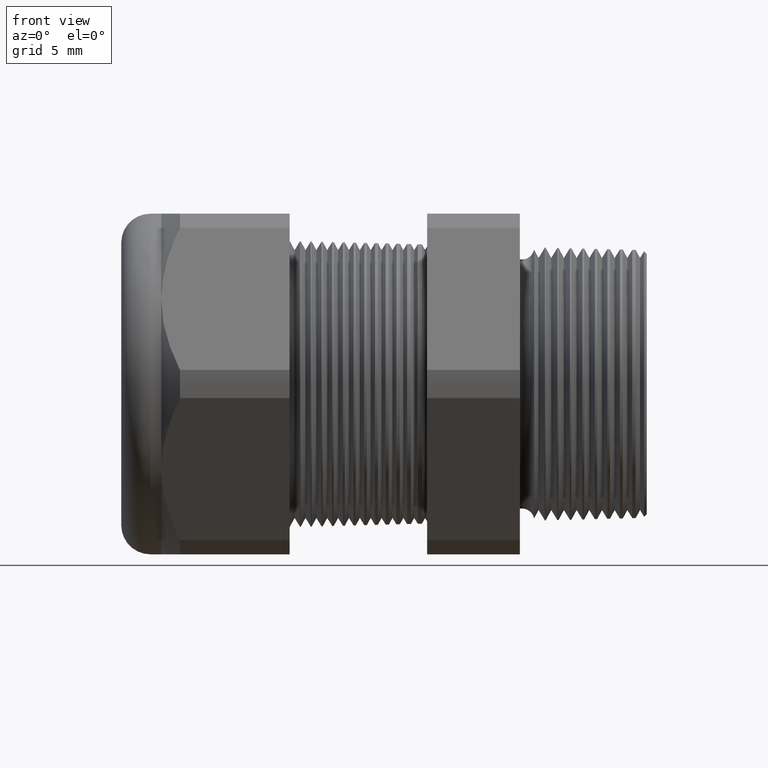
[diagram: clean part render]
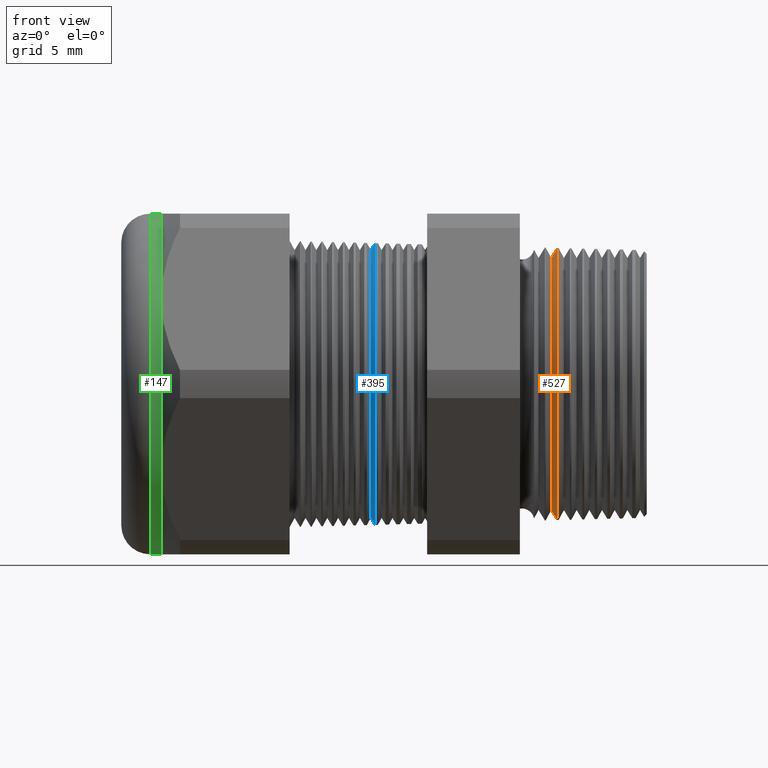
[diagram: same view with three faces highlighted in distinct colors, each labeled with its STEP entity id]
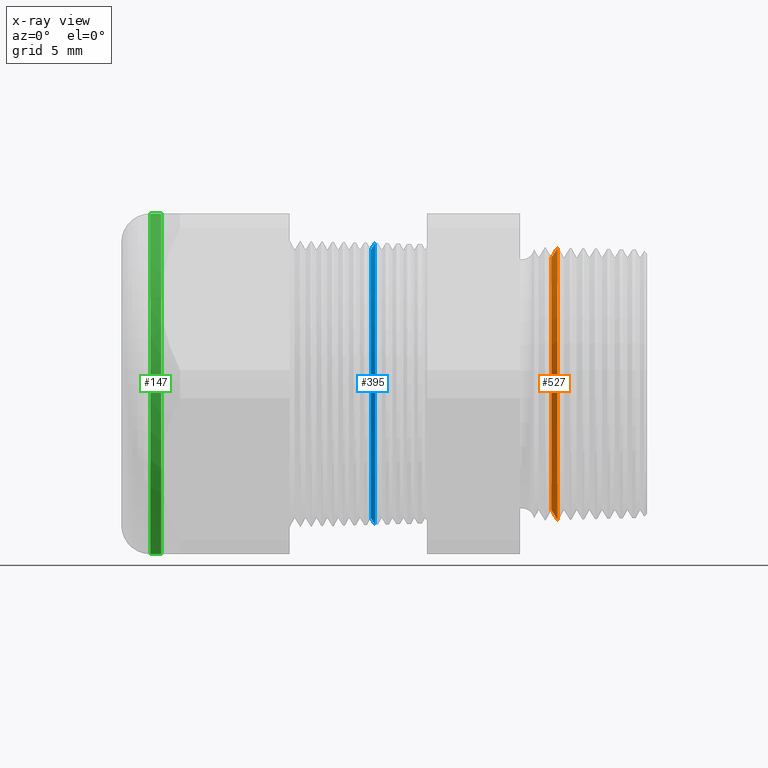
[diagram: x-ray of the same camera — body ghosted, the three highlighted faces saturated]
A machine part, front view with three faces highlighted in distinct colors.
The next image is the same camera in x-ray (body ghosted, the three faces saturated) — at least one of them is partly hidden behind the body in this view.
Their STEP definitions:

[orange] entity #527 — the highlighted conical surface has half-angle 58.5 deg.
#524 = EDGE_CURVE ( 'NONE', #1078, #1077, #2582, .T. ) ;
#527 = ADVANCED_FACE ( 'NONE', ( #2574 ), #2573, .T. ) ;
#528 = EDGE_LOOP ( 'NONE', ( #529, #530, #531, #532 ) ) ;
#529 = ORIENTED_EDGE ( 'NONE', *, *, #1157, .F. ) ;
#530 = ORIENTED_EDGE ( 'NONE', *, *, #524, .T. ) ;
#531 = ORIENTED_EDGE ( 'NONE', *, *, #1164, .T. ) ;
#532 = ORIENTED_EDGE ( 'NONE', *, *, #1655, .T. ) ;
#1077 = VERTEX_POINT ( 'NONE', #3545 ) ;
#1078 = VERTEX_POINT ( 'NONE', #3544 ) ;
#1157 = EDGE_CURVE ( 'NONE', #1078, #1158, #3708, .T. ) ;
#1158 = VERTEX_POINT ( 'NONE', #3704 ) ;
#1161 = VERTEX_POINT ( 'NONE', #3761 ) ;
#1164 = EDGE_CURVE ( 'NONE', #1077, #1161, #3760, .T. ) ;
#1655 = EDGE_CURVE ( 'NONE', #1161, #1158, #4691, .T. ) ;
#2567 = DIRECTION ( 'NONE',  ( 0.0000000000000000000, 0.0000000000000000000, -1.000000000000000000 ) ) ;
#2568 = DIRECTION ( 'NONE',  ( 1.000000000000000000, 0.0000000000000000000, 0.0000000000000000000 ) ) ;
#2569 = CARTESIAN_POINT ( 'NONE',  ( -0.2234707356790751300, 0.0000000000000000000, 0.0000000000000000000 ) ) ;
#2570 = AXIS2_PLACEMENT_3D ( 'NONE', #2569, #2568, #2567 ) ;
#2573 = CONICAL_SURFACE ( 'NONE', #2570, 0.3479174816500060800, 1.021017612416698700 ) ;
#2574 = FACE_OUTER_BOUND ( 'NONE', #528, .T. ) ;
#2575 = DIRECTION ( 'NONE',  ( 0.0000000000000000000, 0.0000000000000000000, -1.000000000000000000 ) ) ;
#2576 = DIRECTION ( 'NONE',  ( 1.000000000000000000, 0.0000000000000000000, 0.0000000000000000000 ) ) ;
#2577 = CARTESIAN_POINT ( 'NONE',  ( -0.2234707356790751300, 0.0000000000000000000, 0.0000000000000000000 ) ) ;
#2578 = AXIS2_PLACEMENT_3D ( 'NONE', #2577, #2576, #2575 ) ;
#2582 = CIRCLE ( 'NONE', #2578, 0.3479174816500060800 ) ;
#3544 = CARTESIAN_POINT ( 'NONE',  ( -0.2234707356790751300, 0.0000000000000000000, 0.3479174816500060800 ) ) ;
#3545 = CARTESIAN_POINT ( 'NONE',  ( -0.2234707356790751300, 4.435784777943734200E-017, -0.3479174816500060800 ) ) ;
#3704 = CARTESIAN_POINT ( 'NONE',  ( -0.2064763869881502400, 0.0000000000000000000, 0.3756497382329496700 ) ) ;
#3705 = DIRECTION ( 'NONE',  ( 0.5224985647159352500, 1.044183048100722500E-016, 0.8526401643541005000 ) ) ;
#3706 = VECTOR ( 'NONE', #3705, 39.37007874015748900 ) ;
#3707 = CARTESIAN_POINT ( 'NONE',  ( -0.2234707356790751300, 4.260760302700879300E-017, 0.3479174816500060800 ) ) ;
#3708 = LINE ( 'NONE', #3707, #3706 ) ;
#3757 = DIRECTION ( 'NONE',  ( 0.5224985647159352500, 0.0000000000000000000, -0.8526401643541005000 ) ) ;
#3758 = VECTOR ( 'NONE', #3757, 39.37007874015748900 ) ;
#3759 = CARTESIAN_POINT ( 'NONE',  ( -0.2234707356790751300, 0.0000000000000000000, -0.3479174816500060800 ) ) ;
#3760 = LINE ( 'NONE', #3759, #3758 ) ;
#3761 = CARTESIAN_POINT ( 'NONE',  ( -0.2064763869881502400, 4.600382495275229500E-017, -0.3756497382329496700 ) ) ;
#4687 = DIRECTION ( 'NONE',  ( 0.0000000000000000000, 0.0000000000000000000, -1.000000000000000000 ) ) ;
#4688 = DIRECTION ( 'NONE',  ( -1.000000000000000000, 0.0000000000000000000, 0.0000000000000000000 ) ) ;
#4689 = CARTESIAN_POINT ( 'NONE',  ( -0.2064763869881502400, 0.0000000000000000000, 0.0000000000000000000 ) ) ;
#4690 = AXIS2_PLACEMENT_3D ( 'NONE', #4689, #4688, #4687 ) ;
#4691 = CIRCLE ( 'NONE', #4690, 0.3756497382329496700 ) ;

[blue] entity #395 — the highlighted conical surface has half-angle 58.5 deg.
#395 = ADVANCED_FACE ( 'NONE', ( #2361 ), #2360, .T. ) ;
#396 = EDGE_LOOP ( 'NONE', ( #397, #398, #399, #400 ) ) ;
#397 = ORIENTED_EDGE ( 'NONE', *, *, #1399, .F. ) ;
#398 = ORIENTED_EDGE ( 'NONE', *, *, #468, .T. ) ;
#399 = ORIENTED_EDGE ( 'NONE', *, *, #1320, .T. ) ;
#400 = ORIENTED_EDGE ( 'NONE', *, *, #1697, .T. ) ;
#468 = EDGE_CURVE ( 'NONE', #1397, #1396, #2464, .T. ) ;
#1318 = VERTEX_POINT ( 'NONE', #4032 ) ;
#1320 = EDGE_CURVE ( 'NONE', #1396, #1318, #4031, .T. ) ;
#1396 = VERTEX_POINT ( 'NONE', #4192 ) ;
#1397 = VERTEX_POINT ( 'NONE', #4191 ) ;
#1399 = EDGE_CURVE ( 'NONE', #1397, #4266, #4190, .T. ) ;
#1697 = EDGE_CURVE ( 'NONE', #1318, #4266, #4795, .T. ) ;
#2354 = DIRECTION ( 'NONE',  ( 0.0000000000000000000, 0.0000000000000000000, -1.000000000000000000 ) ) ;
#2355 = DIRECTION ( 'NONE',  ( 1.000000000000000000, 0.0000000000000000000, 0.0000000000000000000 ) ) ;
#2356 = CARTESIAN_POINT ( 'NONE',  ( -0.7216586839320379100, 0.0000000000000000000, 0.0000000000000000000 ) ) ;
#2357 = AXIS2_PLACEMENT_3D ( 'NONE', #2356, #2355, #2354 ) ;
#2360 = CONICAL_SURFACE ( 'NONE', #2357, 0.3696307351718083300, 1.021017612416700500 ) ;
#2361 = FACE_OUTER_BOUND ( 'NONE', #396, .T. ) ;
#2456 = DIRECTION ( 'NONE',  ( 0.0000000000000000000, 0.0000000000000000000, -1.000000000000000000 ) ) ;
#2457 = DIRECTION ( 'NONE',  ( 1.000000000000000000, 0.0000000000000000000, 0.0000000000000000000 ) ) ;
#2458 = CARTESIAN_POINT ( 'NONE',  ( -0.7216586839320379100, 0.0000000000000000000, 0.0000000000000000000 ) ) ;
#2459 = AXIS2_PLACEMENT_3D ( 'NONE', #2458, #2457, #2456 ) ;
#2464 = CIRCLE ( 'NONE', #2459, 0.3696307351718083300 ) ;
#4028 = DIRECTION ( 'NONE',  ( 0.5224985647159337000, 0.0000000000000000000, -0.8526401643541013900 ) ) ;
#4029 = VECTOR ( 'NONE', #4028, 39.37007874015748900 ) ;
#4030 = CARTESIAN_POINT ( 'NONE',  ( -0.7216586839320379100, 0.0000000000000000000, -0.3696307351718083300 ) ) ;
#4031 = LINE ( 'NONE', #4030, #4029 ) ;
#4032 = CARTESIAN_POINT ( 'NONE',  ( -0.7098920471679521800, 4.761820371593978500E-017, -0.3888321412271149000 ) ) ;
#4187 = DIRECTION ( 'NONE',  ( 0.5224985647159337000, 1.044183048100723500E-016, 0.8526401643541013900 ) ) ;
#4188 = VECTOR ( 'NONE', #4187, 39.37007874015748900 ) ;
#4189 = CARTESIAN_POINT ( 'NONE',  ( -0.7216586839320379100, 4.526670966946380000E-017, 0.3696307351718083300 ) ) ;
#4190 = LINE ( 'NONE', #4189, #4188 ) ;
#4191 = CARTESIAN_POINT ( 'NONE',  ( -0.7216586839320379100, 0.0000000000000000000, 0.3696307351718083300 ) ) ;
#4192 = CARTESIAN_POINT ( 'NONE',  ( -0.7216586839320379100, 4.647855336083581100E-017, -0.3696307351718083300 ) ) ;
#4266 = VERTEX_POINT ( 'NONE', #4923 ) ;
#4791 = DIRECTION ( 'NONE',  ( 0.0000000000000000000, 0.0000000000000000000, -1.000000000000000000 ) ) ;
#4792 = DIRECTION ( 'NONE',  ( -1.000000000000000000, 0.0000000000000000000, 0.0000000000000000000 ) ) ;
#4793 = CARTESIAN_POINT ( 'NONE',  ( -0.7098920471679521800, 0.0000000000000000000, 0.0000000000000000000 ) ) ;
#4794 = AXIS2_PLACEMENT_3D ( 'NONE', #4793, #4792, #4791 ) ;
#4795 = CIRCLE ( 'NONE', #4794, 0.3888321412271149000 ) ;
#4923 = CARTESIAN_POINT ( 'NONE',  ( -0.7098920471679521800, 0.0000000000000000000, 0.3888321412271149000 ) ) ;

[green] entity #147 — the highlighted cylindrical surface (partial cylindrical patch) has radius 11.938 mm, axis along (1, 0, 0).
#132 = ORIENTED_EDGE ( 'NONE', *, *, #133, .F. ) ;
#133 = EDGE_CURVE ( 'NONE', #1358, #5219, #2029, .T. ) ;
#147 = ADVANCED_FACE ( 'NONE', ( #1997 ), #1996, .T. ) ;
#148 = EDGE_LOOP ( 'NONE', ( #149, #150, #152, #153, #155, #132 ) ) ;
#149 = ORIENTED_EDGE ( 'NONE', *, *, #1440, .F. ) ;
#150 = ORIENTED_EDGE ( 'NONE', *, *, #151, .T. ) ;
#151 = EDGE_CURVE ( 'NONE', #1364, #1363, #2057, .T. ) ;
#152 = ORIENTED_EDGE ( 'NONE', *, *, #1424, .T. ) ;
#153 = ORIENTED_EDGE ( 'NONE', *, *, #154, .F. ) ;
#154 = EDGE_CURVE ( 'NONE', #5170, #1422, #2050, .T. ) ;
#155 = ORIENTED_EDGE ( 'NONE', *, *, #156, .F. ) ;
#156 = EDGE_CURVE ( 'NONE', #5219, #5170, #2045, .T. ) ;
#1358 = VERTEX_POINT ( 'NONE', #4142 ) ;
#1363 = VERTEX_POINT ( 'NONE', #4130 ) ;
#1364 = VERTEX_POINT ( 'NONE', #4129 ) ;
#1422 = VERTEX_POINT ( 'NONE', #4296 ) ;
#1424 = EDGE_CURVE ( 'NONE', #1363, #1422, #4295, .T. ) ;
#1440 = EDGE_CURVE ( 'NONE', #1364, #1358, #4328, .T. ) ;
#1996 = CYLINDRICAL_SURFACE ( 'NONE', #2058, 0.4699999999999999200 ) ;
#1997 = FACE_OUTER_BOUND ( 'NONE', #148, .T. ) ;
#2002 = CARTESIAN_POINT ( 'NONE',  ( 0.0000000000000000000, 0.0000000000000000000, 0.0000000000000000000 ) ) ;
#2025 = DIRECTION ( 'NONE',  ( 0.0000000000000000000, 0.0000000000000000000, -1.000000000000000000 ) ) ;
#2026 = DIRECTION ( 'NONE',  ( 1.000000000000000000, 0.0000000000000000000, 0.0000000000000000000 ) ) ;
#2027 = CARTESIAN_POINT ( 'NONE',  ( -1.299763779527559200, 0.0000000000000000000, 0.0000000000000000000 ) ) ;
#2028 = AXIS2_PLACEMENT_3D ( 'NONE', #2027, #2026, #2025 ) ;
#2029 = CIRCLE ( 'NONE', #2028, 0.4699999999999999200 ) ;
#2041 = DIRECTION ( 'NONE',  ( 0.0000000000000000000, 0.0000000000000000000, -1.000000000000000000 ) ) ;
#2042 = DIRECTION ( 'NONE',  ( 1.000000000000000000, 0.0000000000000000000, 0.0000000000000000000 ) ) ;
#2043 = CARTESIAN_POINT ( 'NONE',  ( -1.299763779527559200, 0.0000000000000000000, 0.0000000000000000000 ) ) ;
#2044 = AXIS2_PLACEMENT_3D ( 'NONE', #2043, #2042, #2041 ) ;
#2045 = CIRCLE ( 'NONE', #2044, 0.4699999999999999200 ) ;
#2046 = DIRECTION ( 'NONE',  ( 0.0000000000000000000, 0.0000000000000000000, -1.000000000000000000 ) ) ;
#2047 = DIRECTION ( 'NONE',  ( 1.000000000000000000, 0.0000000000000000000, 0.0000000000000000000 ) ) ;
#2048 = CARTESIAN_POINT ( 'NONE',  ( -1.299763779527559200, 0.0000000000000000000, 0.0000000000000000000 ) ) ;
#2049 = AXIS2_PLACEMENT_3D ( 'NONE', #2048, #2047, #2046 ) ;
#2050 = CIRCLE ( 'NONE', #2049, 0.4699999999999999200 ) ;
#2051 = DIRECTION ( 'NONE',  ( 0.0000000000000000000, 0.0000000000000000000, 1.000000000000000000 ) ) ;
#2052 = DIRECTION ( 'NONE',  ( 1.000000000000000000, 0.0000000000000000000, 0.0000000000000000000 ) ) ;
#2053 = CARTESIAN_POINT ( 'NONE',  ( -1.330000000000000100, 0.0000000000000000000, 0.0000000000000000000 ) ) ;
#2054 = AXIS2_PLACEMENT_3D ( 'NONE', #2053, #2052, #2051 ) ;
#2055 = DIRECTION ( 'NONE',  ( 0.0000000000000000000, 0.0000000000000000000, -1.000000000000000000 ) ) ;
#2056 = DIRECTION ( 'NONE',  ( 1.000000000000000000, 0.0000000000000000000, 0.0000000000000000000 ) ) ;
#2057 = CIRCLE ( 'NONE', #2054, 0.4699999999999999200 ) ;
#2058 = AXIS2_PLACEMENT_3D ( 'NONE', #2002, #2056, #2055 ) ;
#4129 = CARTESIAN_POINT ( 'NONE',  ( -1.330000000000000100, 5.755839955992558400E-017, 0.4699999999999999200 ) ) ;
#4130 = CARTESIAN_POINT ( 'NONE',  ( -1.330000000000000100, 0.0000000000000000000, -0.4699999999999999200 ) ) ;
#4142 = CARTESIAN_POINT ( 'NONE',  ( -1.299763779527559200, 0.0000000000000000000, 0.4699999999999999200 ) ) ;
#4292 = DIRECTION ( 'NONE',  ( 1.000000000000000000, 0.0000000000000000000, 0.0000000000000000000 ) ) ;
#4293 = VECTOR ( 'NONE', #4292, 39.37007874015748100 ) ;
#4294 = CARTESIAN_POINT ( 'NONE',  ( 0.0000000000000000000, 0.0000000000000000000, -0.4699999999999999200 ) ) ;
#4295 = LINE ( 'NONE', #4294, #4293 ) ;
#4296 = CARTESIAN_POINT ( 'NONE',  ( -1.299763779527559200, 0.0000000000000000000, -0.4700000000000000300 ) ) ;
#4325 = DIRECTION ( 'NONE',  ( 1.000000000000000000, 0.0000000000000000000, 0.0000000000000000000 ) ) ;
#4326 = VECTOR ( 'NONE', #4325, 39.37007874015748100 ) ;
#4327 = CARTESIAN_POINT ( 'NONE',  ( 0.0000000000000000000, 5.755839955992558400E-017, 0.4699999999999999200 ) ) ;
#4328 = LINE ( 'NONE', #4327, #4326 ) ;
#4931 = CARTESIAN_POINT ( 'NONE',  ( -1.299763779527559200, -0.4070319397786861200, -0.2350000000000000100 ) ) ;
#5037 = CARTESIAN_POINT ( 'NONE',  ( -1.299763779527559200, -0.4070319397786862900, 0.2349999999999999300 ) ) ;
#5170 = VERTEX_POINT ( 'NONE', #4931 ) ;
#5219 = VERTEX_POINT ( 'NONE', #5037 ) ;